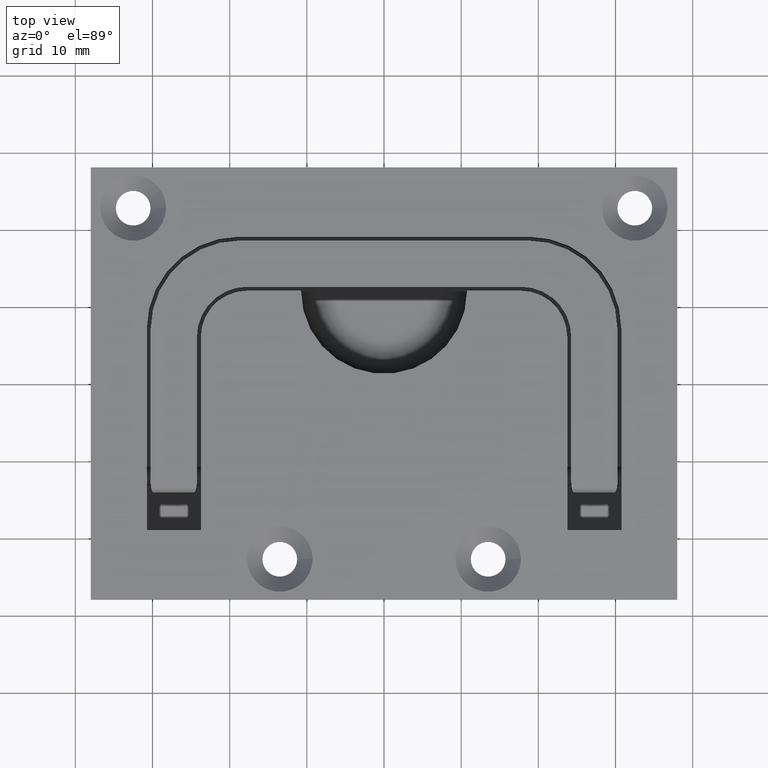
[diagram: clean part render]
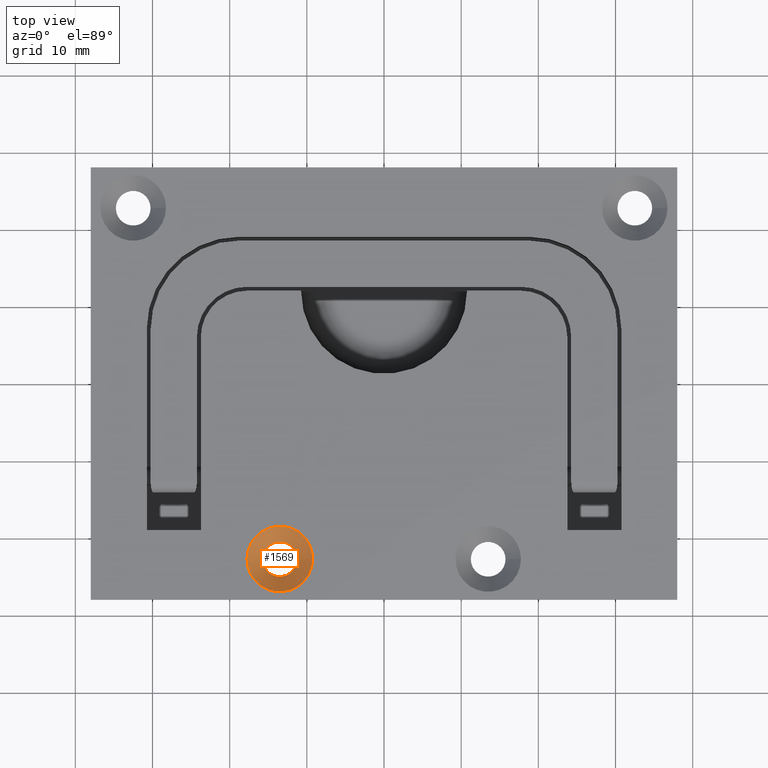
[diagram: same view with one face highlighted and labeled with its STEP entity id]
A machine part, top view. The second image highlights one B-rep face of the part: STEP entity #1569.
In plain terms, the highlighted conical surface has half-angle 42.5 deg.
Its self-contained STEP definition (entity closure, byte-faithful):
#371=FACE_BOUND('',#502,.T.);
#391=FACE_OUTER_BOUND('',#501,.T.);
#501=EDGE_LOOP('',(#1103));
#502=EDGE_LOOP('',(#1104));
#622=CIRCLE('',#1688,4.25);
#623=CIRCLE('',#1689,2.25);
#720=VERTEX_POINT('',#2414);
#721=VERTEX_POINT('',#2416);
#868=EDGE_CURVE('',#720,#720,#622,.T.);
#869=EDGE_CURVE('',#721,#721,#623,.T.);
#1103=ORIENTED_EDGE('',*,*,#868,.F.);
#1104=ORIENTED_EDGE('',*,*,#869,.F.);
#1558=CONICAL_SURFACE('',#1687,3.25,42.5);
#1569=ADVANCED_FACE('',(#391,#371),#1558,.F.);
#1687=AXIS2_PLACEMENT_3D('',#2413,#1904,#1905);
#1688=AXIS2_PLACEMENT_3D('',#2415,#1906,#1907);
#1689=AXIS2_PLACEMENT_3D('',#2417,#1908,#1909);
#1904=DIRECTION('center_axis',(0.,0.,1.));
#1905=DIRECTION('ref_axis',(1.,0.,0.));
#1906=DIRECTION('center_axis',(0.,0.,-1.));
#1907=DIRECTION('ref_axis',(1.,0.,0.));
#1908=DIRECTION('center_axis',(0.,0.,1.));
#1909=DIRECTION('ref_axis',(1.,0.,0.));
#2413=CARTESIAN_POINT('Origin',(-13.5,-22.75,1.40869149893073));
#2414=CARTESIAN_POINT('',(-9.25,-22.75,2.5));
#2415=CARTESIAN_POINT('Origin',(-13.5,-22.75,2.5));
#2416=CARTESIAN_POINT('',(-11.25,-22.75,0.317382997861457));
#2417=CARTESIAN_POINT('Origin',(-13.5,-22.75,0.317382997861451));